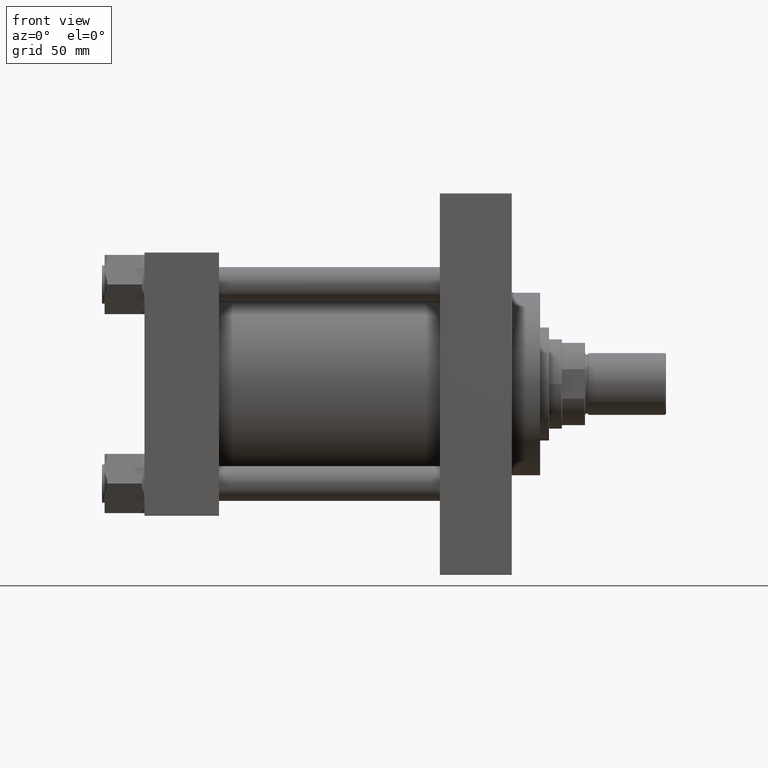
[diagram: clean part render]
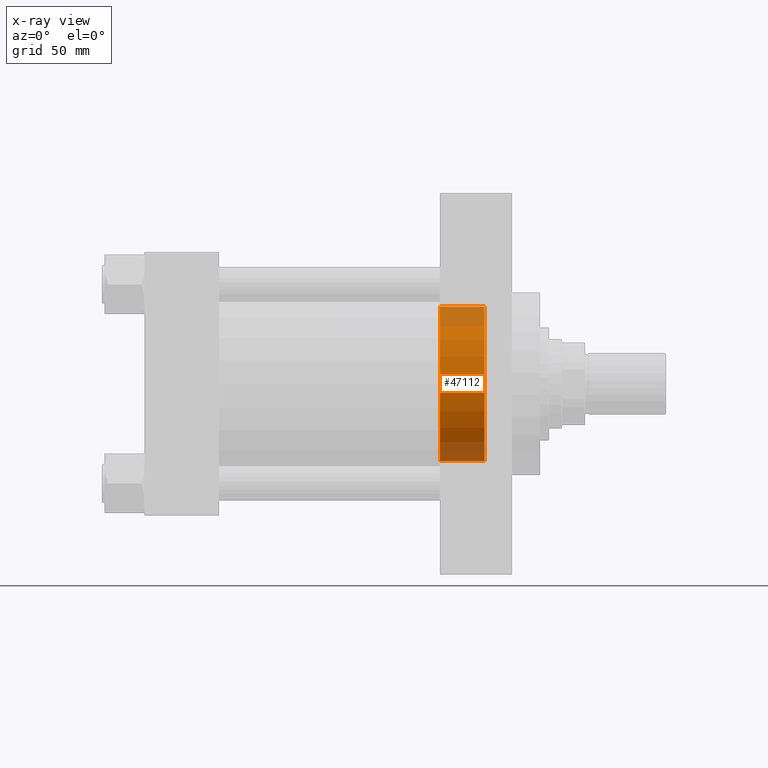
[diagram: x-ray — body ghosted, one internal face saturated and labeled with its STEP entity id]
A machine part, front view, then the same camera in x-ray: the body is ghosted and one INTERNAL B-rep face — a face not visible from any outside direction — is saturated and labeled: STEP entity #47112.
In plain terms, the highlighted cylindrical surface (partial cylindrical patch) has radius 60 mm, axis along (1, 0, 0).
Its self-contained STEP definition (entity closure, byte-faithful):
#1472 = DIRECTION ( 'NONE',  ( 1.000000000000000000, -0.000000000000000000, -0.000000000000000000 ) ) ;
#1715 = CARTESIAN_POINT ( 'NONE',  ( 229.9999999999999716, 7.347880794884118356E-15, 60.00000000000000000 ) ) ;
#2783 = AXIS2_PLACEMENT_3D ( 'NONE', #24613, #17304, #25802 ) ;
#3389 = DIRECTION ( 'NONE',  ( 1.000000000000000000, -0.000000000000000000, -0.000000000000000000 ) ) ;
#3551 = FACE_OUTER_BOUND ( 'NONE', #13877, .T. ) ;
#3792 = DIRECTION ( 'NONE',  ( 1.000000000000000000, -0.000000000000000000, -0.000000000000000000 ) ) ;
#6054 = CARTESIAN_POINT ( 'NONE',  ( 264.7399999999999523, 0.000000000000000000, -60.00000000000000000 ) ) ;
#7448 = CYLINDRICAL_SURFACE ( 'NONE', #35939, 60.00000000000000000 ) ;
#8988 = CIRCLE ( 'NONE', #2783, 60.00000000000000000 ) ;
#9282 = CARTESIAN_POINT ( 'NONE',  ( 264.7399999999999523, 7.347880794884118356E-15, 60.00000000000000000 ) ) ;
#10424 = ORIENTED_EDGE ( 'NONE', *, *, #41812, .T. ) ;
#10540 = VECTOR ( 'NONE', #3389, 1000.000000000000000 ) ;
#11397 = EDGE_CURVE ( 'NONE', #31416, #41218, #8988, .T. ) ;
#12278 = CARTESIAN_POINT ( 'NONE',  ( 229.9999999999999716, 0.000000000000000000, 0.000000000000000000 ) ) ;
#13877 = EDGE_LOOP ( 'NONE', ( #10424, #28534, #16930, #48022 ) ) ;
#14563 = VECTOR ( 'NONE', #1472, 1000.000000000000000 ) ;
#15204 = DIRECTION ( 'NONE',  ( 0.000000000000000000, 0.000000000000000000, 1.000000000000000000 ) ) ;
#16930 = ORIENTED_EDGE ( 'NONE', *, *, #11397, .T. ) ;
#17304 = DIRECTION ( 'NONE',  ( 1.000000000000000000, 0.000000000000000000, 0.000000000000000000 ) ) ;
#23612 = LINE ( 'NONE', #35068, #14563 ) ;
#24068 = CIRCLE ( 'NONE', #29535, 60.00000000000000000 ) ;
#24613 = CARTESIAN_POINT ( 'NONE',  ( 264.7399999999999523, 0.000000000000000000, 0.000000000000000000 ) ) ;
#25767 = CARTESIAN_POINT ( 'NONE',  ( -111.7056274847714121, 7.347880794884118356E-15, 60.00000000000000000 ) ) ;
#25802 = DIRECTION ( 'NONE',  ( 0.000000000000000000, 0.000000000000000000, -1.000000000000000000 ) ) ;
#25959 = VERTEX_POINT ( 'NONE', #26526 ) ;
#26394 = DIRECTION ( 'NONE',  ( -1.000000000000000000, 0.000000000000000000, -0.000000000000000000 ) ) ;
#26526 = CARTESIAN_POINT ( 'NONE',  ( 229.9999999999999716, 0.000000000000000000, -60.00000000000000000 ) ) ;
#27218 = EDGE_CURVE ( 'NONE', #34774, #31416, #39688, .T. ) ;
#28534 = ORIENTED_EDGE ( 'NONE', *, *, #27218, .T. ) ;
#29535 = AXIS2_PLACEMENT_3D ( 'NONE', #12278, #26394, #15204 ) ;
#29821 = DIRECTION ( 'NONE',  ( 0.000000000000000000, 0.000000000000000000, -1.000000000000000000 ) ) ;
#31416 = VERTEX_POINT ( 'NONE', #9282 ) ;
#34765 = EDGE_CURVE ( 'NONE', #25959, #41218, #23612, .T. ) ;
#34774 = VERTEX_POINT ( 'NONE', #1715 ) ;
#35068 = CARTESIAN_POINT ( 'NONE',  ( -111.7056274847714121, 0.000000000000000000, -60.00000000000000000 ) ) ;
#35939 = AXIS2_PLACEMENT_3D ( 'NONE', #37621, #3792, #29821 ) ;
#37621 = CARTESIAN_POINT ( 'NONE',  ( -111.7056274847714121, 0.000000000000000000, 0.000000000000000000 ) ) ;
#39688 = LINE ( 'NONE', #25767, #10540 ) ;
#41218 = VERTEX_POINT ( 'NONE', #6054 ) ;
#41812 = EDGE_CURVE ( 'NONE', #25959, #34774, #24068, .T. ) ;
#47112 = ADVANCED_FACE ( 'NONE', ( #3551 ), #7448, .F. ) ;
#48022 = ORIENTED_EDGE ( 'NONE', *, *, #34765, .F. ) ;